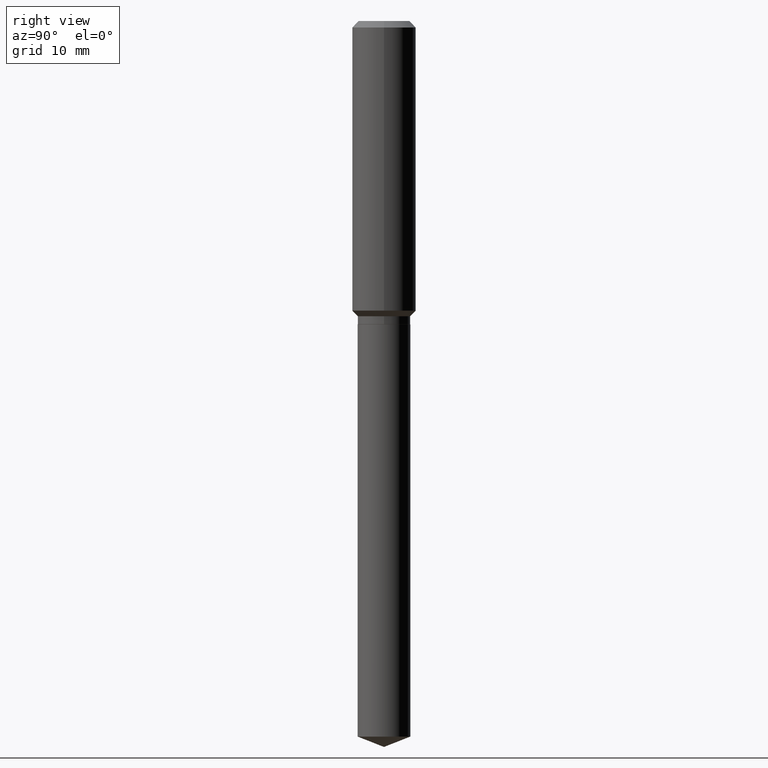
[diagram: clean part render]
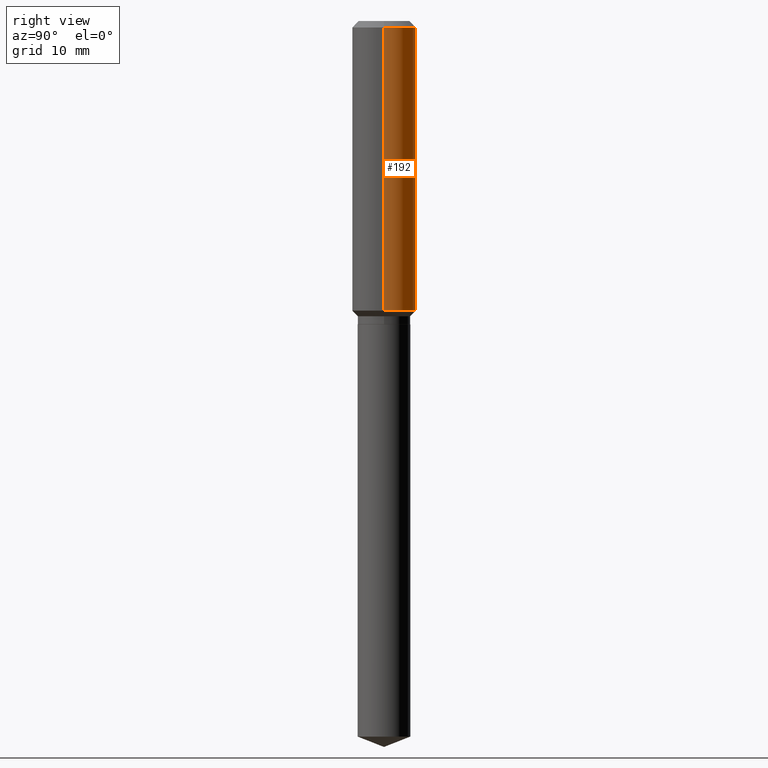
[diagram: same view with one face highlighted and labeled with its STEP entity id]
A machine part, right view. The second image highlights one B-rep face of the part: STEP entity #192.
In plain terms, the highlighted cylindrical surface (edge-blend (fillet) strip) has radius 4.0005 mm, axis along (-0, 0, 1).
Its self-contained STEP definition (entity closure, byte-faithful):
#22 = CARTESIAN_POINT ( 'NONE',  ( 0.000000000000000000, 0.000000000000000000, 0.000000000000000000 ) ) ;
#23 = AXIS2_PLACEMENT_3D ( 'NONE', #479, #193, #295 ) ;
#24 = ORIENTED_EDGE ( 'NONE', *, *, #299, .F. ) ;
#59 = CYLINDRICAL_SURFACE ( 'NONE', #60, 0.1575000000000000844 ) ;
#60 = AXIS2_PLACEMENT_3D ( 'NONE', #22, #175, #217 ) ;
#76 = CARTESIAN_POINT ( 'NONE',  ( 3.495553111561034173E-29, -4.990723425742393195E-15, -1.429400000000000004 ) ) ;
#94 = VERTEX_POINT ( 'NONE', #297 ) ;
#144 = AXIS2_PLACEMENT_3D ( 'NONE', #76, #378, #231 ) ;
#152 = VECTOR ( 'NONE', #237, 39.37007874015748143 ) ;
#153 = FACE_OUTER_BOUND ( 'NONE', #428, .T. ) ;
#161 = CARTESIAN_POINT ( 'NONE',  ( 0.1575000000000001676, -6.090540047477979887E-15, -1.429400000000000004 ) ) ;
#172 = EDGE_CURVE ( 'NONE', #236, #420, #264, .T. ) ;
#175 = DIRECTION ( 'NONE',  ( -2.445468806185136597E-29, 3.491481338843145583E-15, 1.000000000000000000 ) ) ;
#190 = CARTESIAN_POINT ( 'NONE',  ( -0.1575000000000000844, 1.119104808822158392E-15, -7.747322767151481189E-30 ) ) ;
#192 = ADVANCED_FACE ( 'NONE', ( #153 ), #59, .T. ) ;
#193 = DIRECTION ( 'NONE',  ( -2.445468806185136597E-29, 3.491481338843145583E-15, 1.000000000000000000 ) ) ;
#197 = ORIENTED_EDGE ( 'NONE', *, *, #210, .F. ) ;
#210 = EDGE_CURVE ( 'NONE', #94, #420, #325, .T. ) ;
#217 = DIRECTION ( 'NONE',  ( 1.000000000000000000, -6.982962677686267499E-15, 4.876176775795936353E-29 ) ) ;
#227 = EDGE_CURVE ( 'NONE', #278, #236, #446, .T. ) ;
#231 = DIRECTION ( 'NONE',  ( 1.000000000000000000, -6.982962677686267499E-15, 0.000000000000000000 ) ) ;
#236 = VERTEX_POINT ( 'NONE', #376 ) ;
#237 = DIRECTION ( 'NONE',  ( -2.445468806185136877E-29, 3.491481338843145188E-15, 1.000000000000000000 ) ) ;
#264 = LINE ( 'NONE', #190, #487 ) ;
#278 = VERTEX_POINT ( 'NONE', #161 ) ;
#279 = LINE ( 'NONE', #326, #152 ) ;
#295 = DIRECTION ( 'NONE',  ( 1.000000000000000000, -6.982962677686265922E-15, 0.000000000000000000 ) ) ;
#297 = CARTESIAN_POINT ( 'NONE',  ( 0.1575000000000000011, -1.209798283909146741E-15, -0.03150000000000019451 ) ) ;
#299 = EDGE_CURVE ( 'NONE', #278, #94, #279, .T. ) ;
#319 = ORIENTED_EDGE ( 'NONE', *, *, #227, .T. ) ;
#325 = CIRCLE ( 'NONE', #23, 0.1575000000000000011 ) ;
#326 = CARTESIAN_POINT ( 'NONE',  ( 0.1575000000000000844, -1.099816621735587677E-15, 7.679978421878603638E-30 ) ) ;
#349 = DIRECTION ( 'NONE',  ( -2.445468806185136877E-29, 3.491481338843145188E-15, 1.000000000000000000 ) ) ;
#364 = CARTESIAN_POINT ( 'NONE',  ( -0.1575000000000000011, -1.431247735135817737E-15, -0.03150000000000019451 ) ) ;
#368 = ORIENTED_EDGE ( 'NONE', *, *, #172, .T. ) ;
#376 = CARTESIAN_POINT ( 'NONE',  ( -0.1575000000000001676, -3.871618616920233225E-15, -1.429400000000000004 ) ) ;
#378 = DIRECTION ( 'NONE',  ( -2.445468806185136597E-29, 3.491481338843145583E-15, 1.000000000000000000 ) ) ;
#420 = VERTEX_POINT ( 'NONE', #364 ) ;
#428 = EDGE_LOOP ( 'NONE', ( #319, #368, #197, #24 ) ) ;
#446 = CIRCLE ( 'NONE', #144, 0.1575000000000001676 ) ;
#479 = CARTESIAN_POINT ( 'NONE',  ( 7.703226739483228723E-31, -1.099816621735597661E-16, -0.03150000000000019451 ) ) ;
#487 = VECTOR ( 'NONE', #349, 39.37007874015748143 ) ;